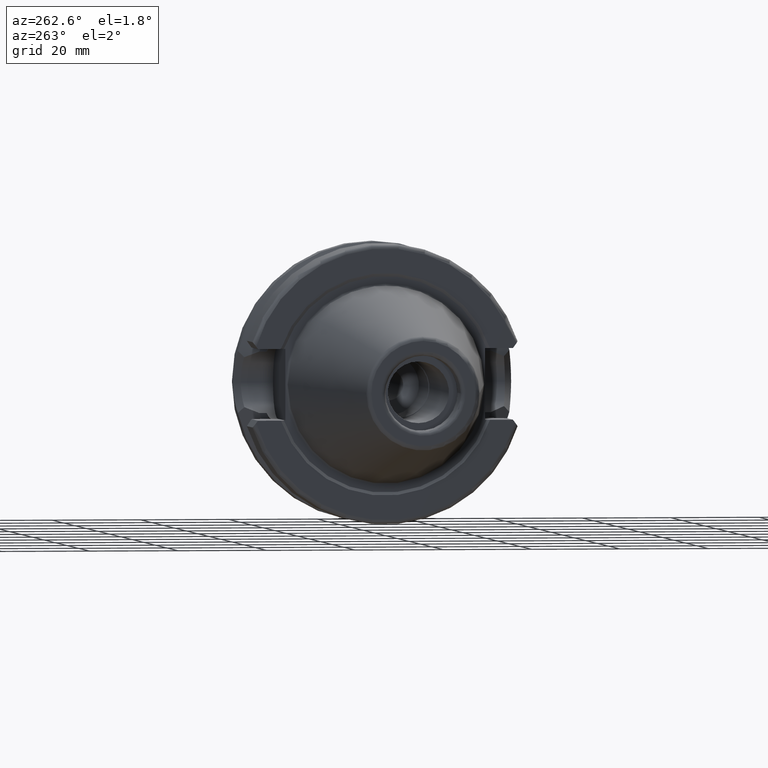
[diagram: clean part render]
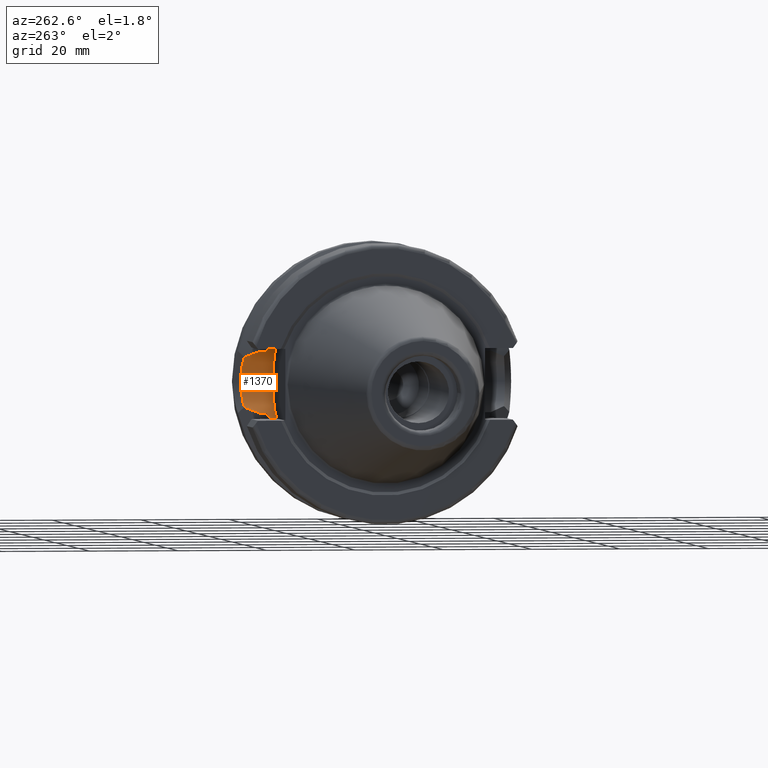
[diagram: same view with one face highlighted and labeled with its STEP entity id]
A machine part, auxiliary view. The second image highlights one B-rep face of the part: STEP entity #1370.
In plain terms, the highlighted cylindrical surface (edge-blend (fillet) strip) has radius 8.05 mm, axis along (0, 1, 0).
Its self-contained STEP definition (entity closure, byte-faithful):
#34=B_SPLINE_CURVE_WITH_KNOTS('',3,(#2286,#2287,#2288,#2289,#2290,#2291),
 .UNSPECIFIED.,.F.,.F.,(4,2,4),(1.4642102789956,1.54570476603971,1.82831600250635),
 .UNSPECIFIED.);
#41=B_SPLINE_CURVE_WITH_KNOTS('',3,(#2453,#2454,#2455,#2456,#2457,#2458,
#2459,#2460,#2461),.UNSPECIFIED.,.F.,.F.,(4,1,1,1,1,1,4),(3.04070094986918,
3.21092706159258,3.56721958104074,3.74536584076483,3.92351210048891,4.10165836021299,
4.2718953396839),.UNSPECIFIED.);
#45=B_SPLINE_CURVE_WITH_KNOTS('',3,(#2609,#2610,#2611,#2612,#2613,#2614),
 .UNSPECIFIED.,.F.,.F.,(4,2,4),(2.44402436414645,2.74958375813844,2.86278921214705),
 .UNSPECIFIED.);
#46=B_SPLINE_CURVE_WITH_KNOTS('',3,(#2620,#2621,#2622,#2623,#2624,#2625),
 .UNSPECIFIED.,.F.,.F.,(4,2,4),(-0.418764848000603,-0.305559393991992,0.),
 .UNSPECIFIED.);
#47=B_SPLINE_CURVE_WITH_KNOTS('',3,(#2639,#2640,#2641,#2642,#2643,#2644),
 .UNSPECIFIED.,.F.,.F.,(4,2,4),(3.3443816511031,3.62699288756974,3.70848737461385),
 .UNSPECIFIED.);
#167=FACE_OUTER_BOUND('',#245,.T.);
#245=EDGE_LOOP('',(#1192,#1193,#1194,#1195,#1196,#1197,#1198,#1199,#1200,
#1201));
#293=LINE('',#2494,#359);
#318=LINE('',#2628,#384);
#319=LINE('',#2631,#385);
#322=LINE('',#2638,#388);
#359=VECTOR('',#1834,10.);
#384=VECTOR('',#1925,10.);
#385=VECTOR('',#1928,10.);
#388=VECTOR('',#1937,10.);
#479=CIRCLE('',#1546,8.05);
#565=VERTEX_POINT('',#2283);
#566=VERTEX_POINT('',#2285);
#589=VERTEX_POINT('',#2439);
#596=VERTEX_POINT('',#2491);
#597=VERTEX_POINT('',#2493);
#626=VERTEX_POINT('',#2608);
#627=VERTEX_POINT('',#2617);
#628=VERTEX_POINT('',#2619);
#629=VERTEX_POINT('',#2630);
#630=VERTEX_POINT('',#2637);
#732=EDGE_CURVE('',#565,#566,#34,.T.);
#763=EDGE_CURVE('',#566,#589,#41,.T.);
#774=EDGE_CURVE('',#596,#597,#293,.T.);
#820=EDGE_CURVE('',#597,#626,#45,.T.);
#823=EDGE_CURVE('',#627,#628,#46,.T.);
#825=EDGE_CURVE('',#626,#565,#318,.T.);
#826=EDGE_CURVE('',#629,#628,#319,.T.);
#828=EDGE_CURVE('',#629,#596,#479,.T.);
#830=EDGE_CURVE('',#630,#627,#322,.T.);
#831=EDGE_CURVE('',#589,#630,#47,.T.);
#1192=ORIENTED_EDGE('',*,*,#763,.F.);
#1193=ORIENTED_EDGE('',*,*,#732,.F.);
#1194=ORIENTED_EDGE('',*,*,#825,.F.);
#1195=ORIENTED_EDGE('',*,*,#820,.F.);
#1196=ORIENTED_EDGE('',*,*,#774,.F.);
#1197=ORIENTED_EDGE('',*,*,#828,.F.);
#1198=ORIENTED_EDGE('',*,*,#826,.T.);
#1199=ORIENTED_EDGE('',*,*,#823,.F.);
#1200=ORIENTED_EDGE('',*,*,#830,.F.);
#1201=ORIENTED_EDGE('',*,*,#831,.F.);
#1308=CYLINDRICAL_SURFACE('',#1547,8.05);
#1370=ADVANCED_FACE('',(#167),#1308,.F.);
#1546=AXIS2_PLACEMENT_3D('',#2634,#1932,#1933);
#1547=AXIS2_PLACEMENT_3D('',#2636,#1935,#1936);
#1834=DIRECTION('',(0.,1.,0.));
#1925=DIRECTION('',(0.,1.,0.));
#1928=DIRECTION('',(0.,1.,0.));
#1932=DIRECTION('center_axis',(0.,1.,0.));
#1933=DIRECTION('ref_axis',(0.,0.,1.));
#1935=DIRECTION('center_axis',(0.,1.,0.));
#1936=DIRECTION('ref_axis',(0.,0.,1.));
#1937=DIRECTION('',(0.,-1.,0.));
#2283=CARTESIAN_POINT('',(19.1,26.201311395455,-6.89782574439221));
#2285=CARTESIAN_POINT('',(20.7197593187301,29.382324732277,-5.61358863864523));
#2286=CARTESIAN_POINT('Ctrl Pts',(19.1,26.201311395455,-6.89782574439221));
#2287=CARTESIAN_POINT('Ctrl Pts',(19.2210929544554,26.438473693351,-6.82497151762395));
#2288=CARTESIAN_POINT('Ctrl Pts',(19.3406963650697,26.6728819297427,-6.74867108656041));
#2289=CARTESIAN_POINT('Ctrl Pts',(19.8677441842159,27.7064624084632,-6.39234949299032));
#2290=CARTESIAN_POINT('Ctrl Pts',(20.3012218741369,28.558364647748,-6.04376984297407));
#2291=CARTESIAN_POINT('Ctrl Pts',(20.7197593187301,29.382324732277,-5.61358863864523));
#2439=CARTESIAN_POINT('',(20.7197593187301,29.382324732277,5.61358863864523));
#2453=CARTESIAN_POINT('Ctrl Pts',(20.7197787825955,29.3823316709255,-5.61360886135053));
#2454=CARTESIAN_POINT('Ctrl Pts',(21.1308430768697,29.458970194539,-5.19167378722979));
#2455=CARTESIAN_POINT('Ctrl Pts',(22.2492595494019,29.6960804142199,-3.77473977455937));
#2456=CARTESIAN_POINT('Ctrl Pts',(23.0211550821544,29.9066006494738,-1.4125153940826));
#2457=CARTESIAN_POINT('Ctrl Pts',(23.0157097907996,29.9039182519613,0.843605139352557));
#2458=CARTESIAN_POINT('Ctrl Pts',(22.6393419473546,29.8036109891106,2.61332108831599));
#2459=CARTESIAN_POINT('Ctrl Pts',(21.8651917792506,29.6133662829998,4.24620350988576));
#2460=CARTESIAN_POINT('Ctrl Pts',(21.131132969351,29.4589578105393,5.19078458658348));
#2461=CARTESIAN_POINT('Ctrl Pts',(20.719759928136,29.3823237557388,5.61358905188596));
#2491=CARTESIAN_POINT('',(14.95,22.6,-8.05));
#2493=CARTESIAN_POINT('',(14.95,24.1960224003864,-8.05));
#2494=CARTESIAN_POINT('',(14.95,22.6,-8.05));
#2608=CARTESIAN_POINT('',(19.1,24.5493380766162,-6.89782574439221));
#2609=CARTESIAN_POINT('Ctrl Pts',(14.95,24.1960224003864,-8.05));
#2610=CARTESIAN_POINT('Ctrl Pts',(15.9685313133066,24.1960224003864,-8.05));
#2611=CARTESIAN_POINT('Ctrl Pts',(17.0497516664971,24.2670783971366,-7.84501312719341));
#2612=CARTESIAN_POINT('Ctrl Pts',(18.4072379028184,24.4390565244262,-7.28065599998141));
#2613=CARTESIAN_POINT('Ctrl Pts',(18.7625417379862,24.492291659194,-7.10085374759973));
#2614=CARTESIAN_POINT('Ctrl Pts',(19.1,24.5493380766162,-6.89782574439221));
#2617=CARTESIAN_POINT('',(19.1,24.5493380766162,6.89782574439221));
#2619=CARTESIAN_POINT('',(14.95,24.1960224003864,8.05));
#2620=CARTESIAN_POINT('Ctrl Pts',(19.1,24.5493380766162,6.89782574439221));
#2621=CARTESIAN_POINT('Ctrl Pts',(18.7625417379862,24.492291659194,7.10085374759973));
#2622=CARTESIAN_POINT('Ctrl Pts',(18.4072379028184,24.4390565244262,7.28065599998141));
#2623=CARTESIAN_POINT('Ctrl Pts',(17.0497516664971,24.2670783971366,7.84501312719341));
#2624=CARTESIAN_POINT('Ctrl Pts',(15.9685313133066,24.1960224003864,8.05));
#2625=CARTESIAN_POINT('Ctrl Pts',(14.95,24.1960224003864,8.05));
#2628=CARTESIAN_POINT('',(19.1,22.6,-6.89782574439221));
#2630=CARTESIAN_POINT('',(14.95,22.6,8.05));
#2631=CARTESIAN_POINT('',(14.95,22.6,8.05));
#2634=CARTESIAN_POINT('Origin',(14.95,22.6,0.));
#2636=CARTESIAN_POINT('Origin',(14.95,22.6,0.));
#2637=CARTESIAN_POINT('',(19.1,26.201311395455,6.89782574439221));
#2638=CARTESIAN_POINT('',(19.1,22.6,6.89782574439221));
#2639=CARTESIAN_POINT('Ctrl Pts',(20.7197593187301,29.382324732277,5.61358863864523));
#2640=CARTESIAN_POINT('Ctrl Pts',(20.3012218741369,28.558364647748,6.04376984297407));
#2641=CARTESIAN_POINT('Ctrl Pts',(19.867744184216,27.7064624084632,6.39234949299032));
#2642=CARTESIAN_POINT('Ctrl Pts',(19.3406963650697,26.6728819297428,6.74867108656041));
#2643=CARTESIAN_POINT('Ctrl Pts',(19.2210929544554,26.438473693351,6.82497151762395));
#2644=CARTESIAN_POINT('Ctrl Pts',(19.1,26.201311395455,6.89782574439221));